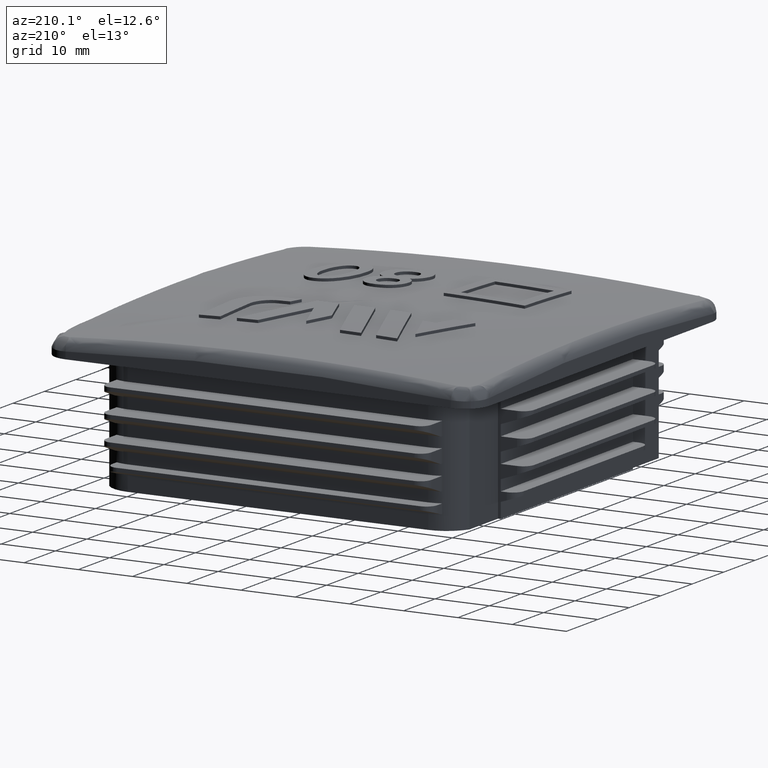
[diagram: clean part render]
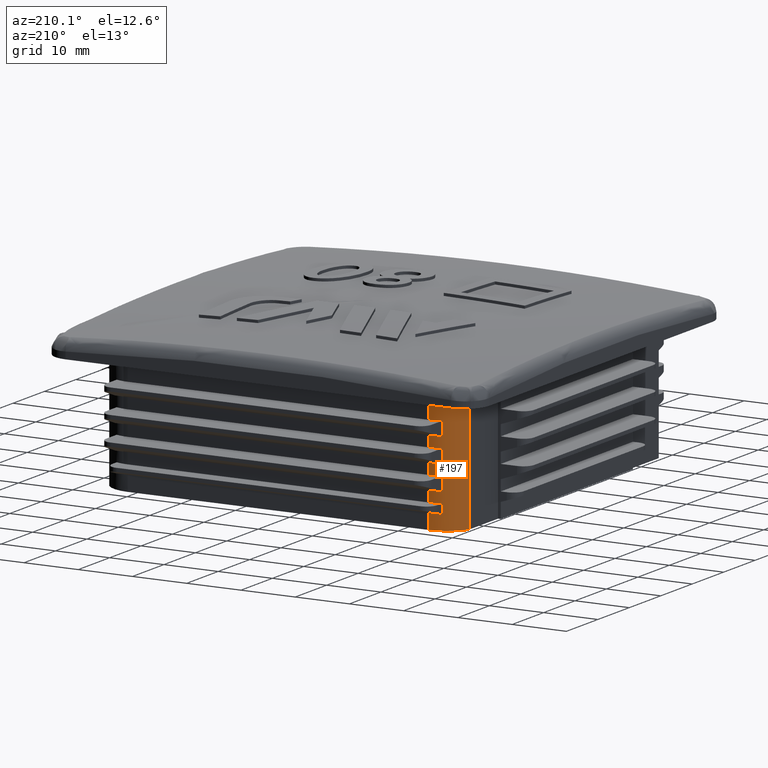
[diagram: same view with one face highlighted and labeled with its STEP entity id]
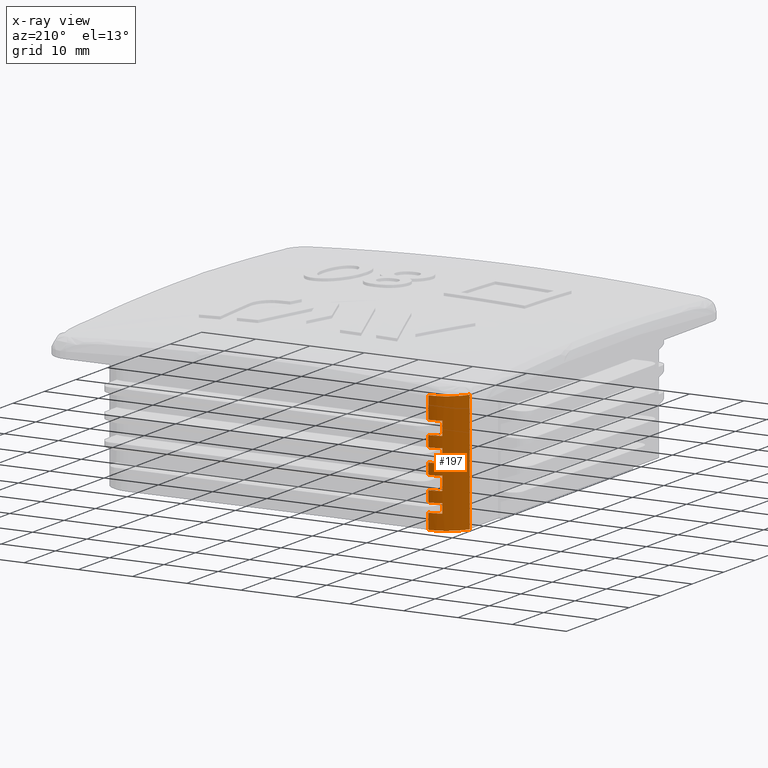
[diagram: x-ray of the same camera — body ghosted, the highlighted face saturated]
A machine part, auxiliary view. The second image highlights one B-rep face of the part: STEP entity #197.
The next image is the same camera in x-ray: the body ghosted, the highlighted face saturated — about 0% of this face is hidden behind the body in this view.
In plain terms, the highlighted cylindrical surface (partial cylindrical patch) has radius 6 mm, axis along (0, 0, -1).
Its self-contained STEP definition (entity closure, byte-faithful):
#197 = ADVANCED_FACE( '', ( #584 ), #585, .T. );
#584 = FACE_OUTER_BOUND( '', #2905, .T. );
#585 = CYLINDRICAL_SURFACE( '', #2906, 6.00000000000000 );
#2905 = EDGE_LOOP( '', ( #4446, #4447, #4448, #4449, #4450, #4451, #4452, #4453, #4454, #4455, #4456, #4457, #4458, #4459, #4460, #4461, #4462, #4463, #4464, #4465 ) );
#2906 = AXIS2_PLACEMENT_3D( '', #4466, #4467, #4468 );
#4446 = ORIENTED_EDGE( '', *, *, #6002, .F. );
#4447 = ORIENTED_EDGE( '', *, *, #5883, .F. );
#4448 = ORIENTED_EDGE( '', *, *, #6003, .F. );
#4449 = ORIENTED_EDGE( '', *, *, #6004, .F. );
#4450 = ORIENTED_EDGE( '', *, *, #6005, .T. );
#4451 = ORIENTED_EDGE( '', *, *, #6006, .F. );
#4452 = ORIENTED_EDGE( '', *, *, #5947, .F. );
#4453 = ORIENTED_EDGE( '', *, *, #6007, .F. );
#4454 = ORIENTED_EDGE( '', *, *, #6008, .T. );
#4455 = ORIENTED_EDGE( '', *, *, #6009, .F. );
#4456 = ORIENTED_EDGE( '', *, *, #6010, .F. );
#4457 = ORIENTED_EDGE( '', *, *, #6011, .F. );
#4458 = ORIENTED_EDGE( '', *, *, #6012, .T. );
#4459 = ORIENTED_EDGE( '', *, *, #6013, .F. );
#4460 = ORIENTED_EDGE( '', *, *, #6014, .F. );
#4461 = ORIENTED_EDGE( '', *, *, #6015, .F. );
#4462 = ORIENTED_EDGE( '', *, *, #6016, .T. );
#4463 = ORIENTED_EDGE( '', *, *, #6017, .F. );
#4464 = ORIENTED_EDGE( '', *, *, #6018, .F. );
#4465 = ORIENTED_EDGE( '', *, *, #5602, .T. );
#4466 = CARTESIAN_POINT( '', ( -27.7000000000000, 27.7000000000000, 0.000000000000000 ) );
#4467 = DIRECTION( '', ( 0.000000000000000, 0.000000000000000, -1.00000000000000 ) );
#4468 = DIRECTION( '', ( 0.000000000000000, -1.00000000000000, 0.000000000000000 ) );
#5602 = EDGE_CURVE( '', #6302, #6300, #6303, .T. );
#5883 = EDGE_CURVE( '', #6784, #6786, #6787, .T. );
#5947 = EDGE_CURVE( '', #6882, #6885, #6886, .T. );
#6002 = EDGE_CURVE( '', #6786, #6300, #6970, .T. );
#6003 = EDGE_CURVE( '', #6971, #6784, #6972, .T. );
#6004 = EDGE_CURVE( '', #6973, #6971, #6974, .F. );
#6005 = EDGE_CURVE( '', #6973, #6975, #6976, .F. );
#6006 = EDGE_CURVE( '', #6885, #6975, #6977, .F. );
#6007 = EDGE_CURVE( '', #6978, #6882, #6979, .F. );
#6008 = EDGE_CURVE( '', #6978, #6980, #6981, .F. );
#6009 = EDGE_CURVE( '', #6982, #6980, #6983, .F. );
#6010 = EDGE_CURVE( '', #6984, #6982, #6985, .T. );
#6011 = EDGE_CURVE( '', #6986, #6984, #6987, .F. );
#6012 = EDGE_CURVE( '', #6986, #6988, #6989, .F. );
#6013 = EDGE_CURVE( '', #6990, #6988, #6991, .F. );
#6014 = EDGE_CURVE( '', #6992, #6990, #6993, .T. );
#6015 = EDGE_CURVE( '', #6994, #6992, #6995, .F. );
#6016 = EDGE_CURVE( '', #6994, #6996, #6997, .F. );
#6017 = EDGE_CURVE( '', #6998, #6996, #6999, .F. );
#6018 = EDGE_CURVE( '', #6302, #6998, #7000, .T. );
#6300 = VERTEX_POINT( '', #7438 );
#6302 = VERTEX_POINT( '', #7441 );
#6303 = CIRCLE( '', #7442, 6.00000000000000 );
#6784 = VERTEX_POINT( '', #9575 );
#6786 = VERTEX_POINT( '', #9578 );
#6787 = CIRCLE( '', #9579, 6.00000000000000 );
#6882 = VERTEX_POINT( '', #9718 );
#6885 = VERTEX_POINT( '', #9722 );
#6886 = LINE( '', #9723, #9724 );
#6970 = LINE( '', #9856, #9857 );
#6971 = VERTEX_POINT( '', #9858 );
#6972 = LINE( '', #9859, #9860 );
#6973 = VERTEX_POINT( '', #9861 );
#6974 = CIRCLE( '', #9862, 6.00000000000000 );
#6975 = VERTEX_POINT( '', #9863 );
#6976 = LINE( '', #9864, #9865 );
#6977 = CIRCLE( '', #9866, 6.00000000000000 );
#6978 = VERTEX_POINT( '', #9867 );
#6979 = CIRCLE( '', #9868, 6.00000000000000 );
#6980 = VERTEX_POINT( '', #9869 );
#6981 = LINE( '', #9870, #9871 );
#6982 = VERTEX_POINT( '', #9872 );
#6983 = CIRCLE( '', #9873, 6.00000000000000 );
#6984 = VERTEX_POINT( '', #9874 );
#6985 = LINE( '', #9875, #9876 );
#6986 = VERTEX_POINT( '', #9877 );
#6987 = CIRCLE( '', #9878, 6.00000000000000 );
#6988 = VERTEX_POINT( '', #9879 );
#6989 = LINE( '', #9880, #9881 );
#6990 = VERTEX_POINT( '', #9882 );
#6991 = CIRCLE( '', #9883, 6.00000000000000 );
#6992 = VERTEX_POINT( '', #9884 );
#6993 = LINE( '', #9885, #9886 );
#6994 = VERTEX_POINT( '', #9887 );
#6995 = CIRCLE( '', #9888, 6.00000000000000 );
#6996 = VERTEX_POINT( '', #9889 );
#6997 = LINE( '', #9890, #9891 );
#6998 = VERTEX_POINT( '', #9892 );
#6999 = CIRCLE( '', #9893, 6.00000000000000 );
#7000 = LINE( '', #9894, #9895 );
#7438 = CARTESIAN_POINT( '', ( -33.2000000000000, 30.0979157616564, 0.000000000000000 ) );
#7441 = CARTESIAN_POINT( '', ( -27.7000000000000, 33.7000000000000, 0.000000000000000 ) );
#7442 = AXIS2_PLACEMENT_3D( '', #11312, #11313, #11314 );
#9575 = CARTESIAN_POINT( '', ( -27.7000000000000, 33.7000000000000, 22.0000000000000 ) );
#9578 = CARTESIAN_POINT( '', ( -33.2000000000000, 30.0979157616564, 22.0000000000000 ) );
#9579 = AXIS2_PLACEMENT_3D( '', #11674, #11675, #11676 );
#9718 = CARTESIAN_POINT( '', ( -27.7000000000000, 33.7000000000000, 13.5000000000000 ) );
#9722 = CARTESIAN_POINT( '', ( -27.7000000000000, 33.7000000000000, 15.5000000000000 ) );
#9723 = CARTESIAN_POINT( '', ( -27.7000000000000, 33.7000000000000, 0.000000000000000 ) );
#9724 = VECTOR( '', #11776, 1000.00000000000 );
#9856 = CARTESIAN_POINT( '', ( -33.2000000000000, 30.0979157616564, 22.0000000000000 ) );
#9857 = VECTOR( '', #11849, 1000.00000000000 );
#9858 = CARTESIAN_POINT( '', ( -27.7000000000000, 33.7000000000000, 18.0000000000000 ) );
#9859 = CARTESIAN_POINT( '', ( -27.7000000000000, 33.7000000000000, 0.000000000000000 ) );
#9860 = VECTOR( '', #11850, 1000.00000000000 );
#9861 = CARTESIAN_POINT( '', ( -30.0000000000000, 33.2416604009990, 18.0000000000000 ) );
#9862 = AXIS2_PLACEMENT_3D( '', #11851, #11852, #11853 );
#9863 = CARTESIAN_POINT( '', ( -30.0000000000000, 33.2416604009990, 15.5000000000000 ) );
#9864 = CARTESIAN_POINT( '', ( -30.0000000000000, 33.2416604009990, 0.000000000000000 ) );
#9865 = VECTOR( '', #11854, 1000.00000000000 );
#9866 = AXIS2_PLACEMENT_3D( '', #11855, #11856, #11857 );
#9867 = CARTESIAN_POINT( '', ( -30.0000000000000, 33.2416604009990, 13.5000000000000 ) );
#9868 = AXIS2_PLACEMENT_3D( '', #11858, #11859, #11860 );
#9869 = CARTESIAN_POINT( '', ( -30.0000000000000, 33.2416604009990, 11.0000000000000 ) );
#9870 = CARTESIAN_POINT( '', ( -30.0000000000000, 33.2416604009990, 0.000000000000000 ) );
#9871 = VECTOR( '', #11861, 1000.00000000000 );
#9872 = CARTESIAN_POINT( '', ( -27.7000000000000, 33.7000000000000, 11.0000000000000 ) );
#9873 = AXIS2_PLACEMENT_3D( '', #11862, #11863, #11864 );
#9874 = CARTESIAN_POINT( '', ( -27.7000000000000, 33.7000000000000, 8.99999999999999 ) );
#9875 = CARTESIAN_POINT( '', ( -27.7000000000000, 33.7000000000000, 0.000000000000000 ) );
#9876 = VECTOR( '', #11865, 1000.00000000000 );
#9877 = CARTESIAN_POINT( '', ( -30.0000000000000, 33.2416604009990, 8.99999999999999 ) );
#9878 = AXIS2_PLACEMENT_3D( '', #11866, #11867, #11868 );
#9879 = CARTESIAN_POINT( '', ( -30.0000000000000, 33.2416604009990, 6.50000000000002 ) );
#9880 = CARTESIAN_POINT( '', ( -30.0000000000000, 33.2416604009990, 0.000000000000000 ) );
#9881 = VECTOR( '', #11869, 1000.00000000000 );
#9882 = CARTESIAN_POINT( '', ( -27.7000000000000, 33.7000000000000, 6.50000000000001 ) );
#9883 = AXIS2_PLACEMENT_3D( '', #11870, #11871, #11872 );
#9884 = CARTESIAN_POINT( '', ( -27.7000000000000, 33.7000000000000, 4.49999999999999 ) );
#9885 = CARTESIAN_POINT( '', ( -27.7000000000000, 33.7000000000000, 0.000000000000000 ) );
#9886 = VECTOR( '', #11873, 1000.00000000000 );
#9887 = CARTESIAN_POINT( '', ( -30.0000000000000, 33.2416604009990, 4.49999999999999 ) );
#9888 = AXIS2_PLACEMENT_3D( '', #11874, #11875, #11876 );
#9889 = CARTESIAN_POINT( '', ( -30.0000000000000, 33.2416604009990, 2.79999999999999 ) );
#9890 = CARTESIAN_POINT( '', ( -30.0000000000000, 33.2416604009990, 0.000000000000000 ) );
#9891 = VECTOR( '', #11877, 1000.00000000000 );
#9892 = CARTESIAN_POINT( '', ( -27.7000000000000, 33.7000000000000, 2.80000000000001 ) );
#9893 = AXIS2_PLACEMENT_3D( '', #11878, #11879, #11880 );
#9894 = CARTESIAN_POINT( '', ( -27.7000000000000, 33.7000000000000, 0.000000000000000 ) );
#9895 = VECTOR( '', #11881, 1000.00000000000 );
#11312 = CARTESIAN_POINT( '', ( -27.7000000000000, 27.7000000000000, 0.000000000000000 ) );
#11313 = DIRECTION( '', ( 0.000000000000000, 0.000000000000000, 1.00000000000000 ) );
#11314 = DIRECTION( '', ( 0.000000000000000, 1.00000000000000, 0.000000000000000 ) );
#11674 = CARTESIAN_POINT( '', ( -27.7000000000000, 27.7000000000000, 22.0000000000000 ) );
#11675 = DIRECTION( '', ( 0.000000000000000, 0.000000000000000, 1.00000000000000 ) );
#11676 = DIRECTION( '', ( 0.000000000000000, 1.00000000000000, 0.000000000000000 ) );
#11776 = DIRECTION( '', ( 0.000000000000000, 0.000000000000000, 1.00000000000000 ) );
#11849 = DIRECTION( '', ( 0.000000000000000, 0.000000000000000, -1.00000000000000 ) );
#11850 = DIRECTION( '', ( 0.000000000000000, 0.000000000000000, 1.00000000000000 ) );
#11851 = CARTESIAN_POINT( '', ( -27.7000000000000, 27.7000000000000, 18.0000000000000 ) );
#11852 = DIRECTION( '', ( 1.04770588974666E-031, 5.55111512312578E-017, 1.00000000000000 ) );
#11853 = DIRECTION( '', ( 0.000000000000000, -1.00000000000000, 5.55111512312578E-017 ) );
#11854 = DIRECTION( '', ( 0.000000000000000, 0.000000000000000, 1.00000000000000 ) );
#11855 = CARTESIAN_POINT( '', ( -27.7000000000000, 27.7000000000000, 15.5000000000000 ) );
#11856 = DIRECTION( '', ( -1.04770588974666E-031, -5.55111512312578E-017, -1.00000000000000 ) );
#11857 = DIRECTION( '', ( 0.000000000000000, 1.00000000000000, -5.55111512312578E-017 ) );
#11858 = CARTESIAN_POINT( '', ( -27.7000000000000, 27.7000000000000, 13.5000000000000 ) );
#11859 = DIRECTION( '', ( 1.04770588974666E-031, 5.55111512312578E-017, 1.00000000000000 ) );
#11860 = DIRECTION( '', ( 0.000000000000000, -1.00000000000000, 5.55111512312578E-017 ) );
#11861 = DIRECTION( '', ( 0.000000000000000, 0.000000000000000, 1.00000000000000 ) );
#11862 = CARTESIAN_POINT( '', ( -27.7000000000000, 27.7000000000000, 11.0000000000000 ) );
#11863 = DIRECTION( '', ( -1.04770588974666E-031, -5.55111512312578E-017, -1.00000000000000 ) );
#11864 = DIRECTION( '', ( 0.000000000000000, 1.00000000000000, -5.55111512312578E-017 ) );
#11865 = DIRECTION( '', ( 0.000000000000000, 0.000000000000000, 1.00000000000000 ) );
#11866 = CARTESIAN_POINT( '', ( -27.7000000000000, 27.7000000000000, 8.99999999999999 ) );
#11867 = DIRECTION( '', ( 1.04770588974666E-031, 5.55111512312578E-017, 1.00000000000000 ) );
#11868 = DIRECTION( '', ( 0.000000000000000, -1.00000000000000, 5.55111512312578E-017 ) );
#11869 = DIRECTION( '', ( 0.000000000000000, 0.000000000000000, 1.00000000000000 ) );
#11870 = CARTESIAN_POINT( '', ( -27.7000000000000, 27.7000000000000, 6.49999999999999 ) );
#11871 = DIRECTION( '', ( -1.04770588974666E-031, -5.55111512312578E-017, -1.00000000000000 ) );
#11872 = DIRECTION( '', ( 0.000000000000000, 1.00000000000000, -5.55111512312578E-017 ) );
#11873 = DIRECTION( '', ( 0.000000000000000, 0.000000000000000, 1.00000000000000 ) );
#11874 = CARTESIAN_POINT( '', ( -27.7000000000000, 27.7000000000000, 4.49999999999999 ) );
#11875 = DIRECTION( '', ( 1.04770588974666E-031, 5.55111512312578E-017, 1.00000000000000 ) );
#11876 = DIRECTION( '', ( 0.000000000000000, -1.00000000000000, 5.55111512312578E-017 ) );
#11877 = DIRECTION( '', ( 0.000000000000000, 0.000000000000000, 1.00000000000000 ) );
#11878 = CARTESIAN_POINT( '', ( -27.7000000000000, 27.7000000000000, 2.79999999999999 ) );
#11879 = DIRECTION( '', ( -1.04770588974666E-031, -5.55111512312578E-017, -1.00000000000000 ) );
#11880 = DIRECTION( '', ( 0.000000000000000, 1.00000000000000, -5.55111512312578E-017 ) );
#11881 = DIRECTION( '', ( 0.000000000000000, 0.000000000000000, 1.00000000000000 ) );